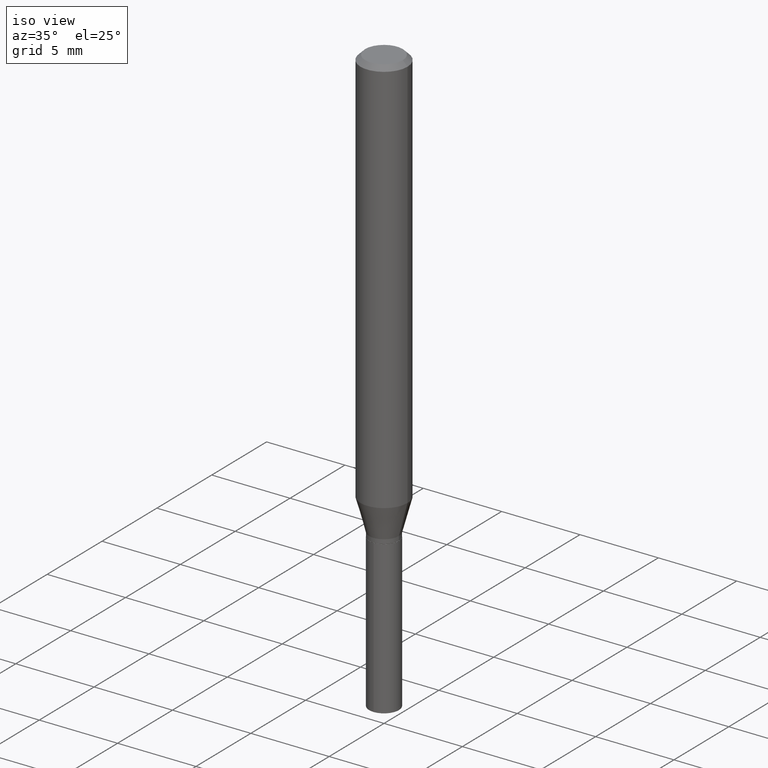
[diagram: clean part render]
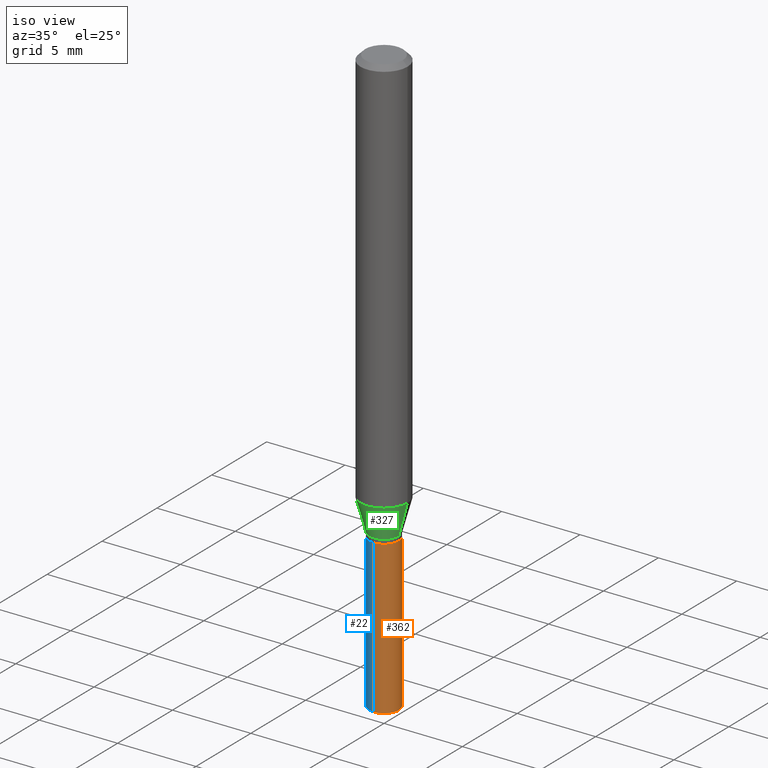
[diagram: same view with three faces highlighted in distinct colors, each labeled with its STEP entity id]
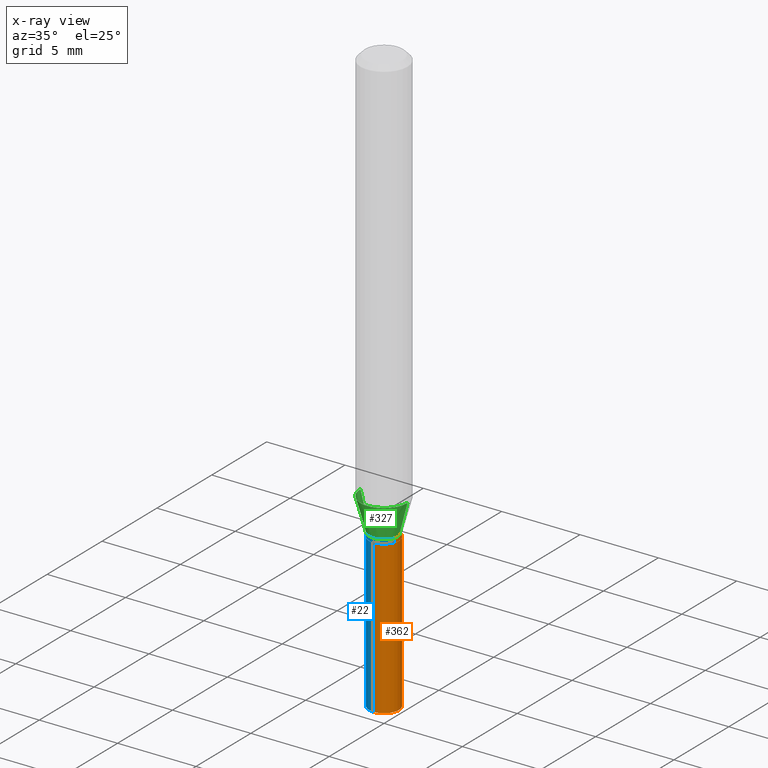
[diagram: x-ray of the same camera — body ghosted, the three highlighted faces saturated]
A machine part, iso view with three faces highlighted in distinct colors.
The next image is the same camera in x-ray (body ghosted, the three faces saturated) — at least one of them is partly hidden behind the body in this view.
Their STEP definitions:

[orange] entity #362 — the highlighted cylindrical surface (edge-blend (fillet) strip) has radius 0.95 mm, axis along (-0, 0, 1).
#4 = DIRECTION ( 'NONE',  ( -2.445358326776455510E-29, 3.491639551644474585E-15, 1.000000000000000000 ) ) ;
#11 = CARTESIAN_POINT ( 'NONE',  ( 2.676565608369631794E-29, -3.821426325363822773E-15, -1.094499999999999806 ) ) ;
#14 = CARTESIAN_POINT ( 'NONE',  ( 2.657429831743042113E-16, 0.03739999999999617936, -1.094500000000000028 ) ) ;
#28 = ORIENTED_EDGE ( 'NONE', *, *, #271, .F. ) ;
#42 = AXIS2_PLACEMENT_3D ( 'NONE', #116, #273, #412 ) ;
#52 = DIRECTION ( 'NONE',  ( -6.982962677686265922E-15, -1.000000000000000000, 3.652203200085913145E-15 ) ) ;
#64 = EDGE_CURVE ( 'NONE', #246, #375, #121, .T. ) ;
#79 = DIRECTION ( 'NONE',  ( -2.445358326776455790E-29, 3.491639551644474585E-15, 1.000000000000000000 ) ) ;
#80 = CARTESIAN_POINT ( 'NONE',  ( -2.611628041454301126E-16, -0.03740000000000516522, -1.478660093585003388 ) ) ;
#97 = ORIENTED_EDGE ( 'NONE', *, *, #64, .F. ) ;
#116 = CARTESIAN_POINT ( 'NONE',  ( 3.615974692032942336E-29, -5.162774902288663749E-15, -1.478660093585003388 ) ) ;
#121 = LINE ( 'NONE', #413, #355 ) ;
#127 = AXIS2_PLACEMENT_3D ( 'NONE', #424, #237, #205 ) ;
#133 = CIRCLE ( 'NONE', #464, 0.03740000000000000269 ) ;
#159 = CARTESIAN_POINT ( 'NONE',  ( 2.657429831743136776E-16, 0.03739999999999617936, -1.094500000000000028 ) ) ;
#179 = ORIENTED_EDGE ( 'NONE', *, *, #360, .T. ) ;
#187 = LINE ( 'NONE', #14, #317 ) ;
#205 = DIRECTION ( 'NONE',  ( -6.982962677686265922E-15, -1.000000000000000000, 3.652203200085913145E-15 ) ) ;
#216 = EDGE_CURVE ( 'NONE', #469, #285, #187, .T. ) ;
#237 = DIRECTION ( 'NONE',  ( -2.445358326776455510E-29, 3.491639551644474585E-15, 1.000000000000000000 ) ) ;
#246 = VERTEX_POINT ( 'NONE', #80 ) ;
#269 = FACE_OUTER_BOUND ( 'NONE', #358, .T. ) ;
#271 = EDGE_CURVE ( 'NONE', #375, #285, #133, .T. ) ;
#273 = DIRECTION ( 'NONE',  ( -2.445358326776455510E-29, 3.491639551644474585E-15, 1.000000000000000000 ) ) ;
#276 = CIRCLE ( 'NONE', #42, 0.03740000000000000269 ) ;
#285 = VERTEX_POINT ( 'NONE', #159 ) ;
#317 = VECTOR ( 'NONE', #378, 39.37007874015748143 ) ;
#321 = CARTESIAN_POINT ( 'NONE',  ( 2.657429831743135790E-16, 0.03739999999999483321, -1.478660093585003388 ) ) ;
#355 = VECTOR ( 'NONE', #79, 39.37007874015748143 ) ;
#358 = EDGE_LOOP ( 'NONE', ( #179, #486, #28, #97 ) ) ;
#360 = EDGE_CURVE ( 'NONE', #246, #469, #276, .T. ) ;
#362 = ADVANCED_FACE ( 'NONE', ( #269 ), #385, .T. ) ;
#375 = VERTEX_POINT ( 'NONE', #450 ) ;
#378 = DIRECTION ( 'NONE',  ( -2.445358326776455790E-29, 3.491639551644474585E-15, 1.000000000000000000 ) ) ;
#385 = CYLINDRICAL_SURFACE ( 'NONE', #127, 0.03740000000000000269 ) ;
#412 = DIRECTION ( 'NONE',  ( -6.982962677686265922E-15, -1.000000000000000000, 0.000000000000000000 ) ) ;
#413 = CARTESIAN_POINT ( 'NONE',  ( -2.611628041454395789E-16, -0.03740000000000381908, -1.094499999999999806 ) ) ;
#424 = CARTESIAN_POINT ( 'NONE',  ( 2.676565608369631794E-29, -3.821426325363822773E-15, -1.094499999999999806 ) ) ;
#450 = CARTESIAN_POINT ( 'NONE',  ( -2.611628041454395789E-16, -0.03740000000000381908, -1.094499999999999806 ) ) ;
#464 = AXIS2_PLACEMENT_3D ( 'NONE', #11, #4, #52 ) ;
#469 = VERTEX_POINT ( 'NONE', #321 ) ;
#486 = ORIENTED_EDGE ( 'NONE', *, *, #216, .T. ) ;

[blue] entity #22 — the highlighted cylindrical surface (edge-blend (fillet) strip) has radius 0.95 mm, axis along (-0, 0, 1).
#12 = FACE_OUTER_BOUND ( 'NONE', #478, .T. ) ;
#14 = CARTESIAN_POINT ( 'NONE',  ( 2.657429831743042113E-16, 0.03739999999999617936, -1.094500000000000028 ) ) ;
#22 = ADVANCED_FACE ( 'NONE', ( #12 ), #274, .T. ) ;
#45 = DIRECTION ( 'NONE',  ( -2.445358326776455510E-29, 3.491639551644474585E-15, 1.000000000000000000 ) ) ;
#50 = ORIENTED_EDGE ( 'NONE', *, *, #64, .T. ) ;
#57 = CIRCLE ( 'NONE', #158, 0.03740000000000000269 ) ;
#64 = EDGE_CURVE ( 'NONE', #246, #375, #121, .T. ) ;
#79 = DIRECTION ( 'NONE',  ( -2.445358326776455790E-29, 3.491639551644474585E-15, 1.000000000000000000 ) ) ;
#80 = CARTESIAN_POINT ( 'NONE',  ( -2.611628041454301126E-16, -0.03740000000000516522, -1.478660093585003388 ) ) ;
#95 = ORIENTED_EDGE ( 'NONE', *, *, #366, .F. ) ;
#121 = LINE ( 'NONE', #413, #355 ) ;
#129 = DIRECTION ( 'NONE',  ( -6.982962677686265922E-15, -1.000000000000000000, 0.000000000000000000 ) ) ;
#158 = AXIS2_PLACEMENT_3D ( 'NONE', #376, #201, #346 ) ;
#159 = CARTESIAN_POINT ( 'NONE',  ( 2.657429831743136776E-16, 0.03739999999999617936, -1.094500000000000028 ) ) ;
#167 = DIRECTION ( 'NONE',  ( -2.445358326776455510E-29, 3.491639551644474585E-15, 1.000000000000000000 ) ) ;
#170 = CIRCLE ( 'NONE', #267, 0.03740000000000000269 ) ;
#187 = LINE ( 'NONE', #14, #317 ) ;
#194 = CARTESIAN_POINT ( 'NONE',  ( 3.615974692032942336E-29, -5.162774902288663749E-15, -1.478660093585003388 ) ) ;
#201 = DIRECTION ( 'NONE',  ( -2.445358326776455510E-29, 3.491639551644474585E-15, 1.000000000000000000 ) ) ;
#206 = ORIENTED_EDGE ( 'NONE', *, *, #216, .F. ) ;
#216 = EDGE_CURVE ( 'NONE', #469, #285, #187, .T. ) ;
#218 = EDGE_CURVE ( 'NONE', #469, #246, #170, .T. ) ;
#246 = VERTEX_POINT ( 'NONE', #80 ) ;
#267 = AXIS2_PLACEMENT_3D ( 'NONE', #194, #45, #129 ) ;
#268 = ORIENTED_EDGE ( 'NONE', *, *, #218, .T. ) ;
#274 = CYLINDRICAL_SURFACE ( 'NONE', #395, 0.03740000000000000269 ) ;
#285 = VERTEX_POINT ( 'NONE', #159 ) ;
#312 = DIRECTION ( 'NONE',  ( -6.982962677686265922E-15, -1.000000000000000000, 3.652203200085913145E-15 ) ) ;
#317 = VECTOR ( 'NONE', #378, 39.37007874015748143 ) ;
#321 = CARTESIAN_POINT ( 'NONE',  ( 2.657429831743135790E-16, 0.03739999999999483321, -1.478660093585003388 ) ) ;
#346 = DIRECTION ( 'NONE',  ( -6.982962677686265922E-15, -1.000000000000000000, 3.652203200085913145E-15 ) ) ;
#355 = VECTOR ( 'NONE', #79, 39.37007874015748143 ) ;
#366 = EDGE_CURVE ( 'NONE', #285, #375, #57, .T. ) ;
#375 = VERTEX_POINT ( 'NONE', #450 ) ;
#376 = CARTESIAN_POINT ( 'NONE',  ( 2.676565608369631794E-29, -3.821426325363822773E-15, -1.094499999999999806 ) ) ;
#378 = DIRECTION ( 'NONE',  ( -2.445358326776455790E-29, 3.491639551644474585E-15, 1.000000000000000000 ) ) ;
#395 = AXIS2_PLACEMENT_3D ( 'NONE', #453, #167, #312 ) ;
#413 = CARTESIAN_POINT ( 'NONE',  ( -2.611628041454395789E-16, -0.03740000000000381908, -1.094499999999999806 ) ) ;
#450 = CARTESIAN_POINT ( 'NONE',  ( -2.611628041454395789E-16, -0.03740000000000381908, -1.094499999999999806 ) ) ;
#453 = CARTESIAN_POINT ( 'NONE',  ( 2.676565608369631794E-29, -3.821426325363822773E-15, -1.094499999999999806 ) ) ;
#469 = VERTEX_POINT ( 'NONE', #321 ) ;
#478 = EDGE_LOOP ( 'NONE', ( #206, #268, #50, #95 ) ) ;

[green] entity #327 — the highlighted conical surface has half-angle 15 deg.
#9 = CARTESIAN_POINT ( 'NONE',  ( 0.03739999999999995411, -4.043484538514245916E-15, -1.083299999999999930 ) ) ;
#10 = LINE ( 'NONE', #165, #34 ) ;
#16 = AXIS2_PLACEMENT_3D ( 'NONE', #272, #163, #383 ) ;
#18 = EDGE_CURVE ( 'NONE', #371, #471, #290, .T. ) ;
#29 = AXIS2_PLACEMENT_3D ( 'NONE', #457, #460, #100 ) ;
#34 = VECTOR ( 'NONE', #125, 39.37007874015747433 ) ;
#38 = CARTESIAN_POINT ( 'NONE',  ( -0.05905000000000013016, -3.080638397409715061E-15, -1.002501100016133240 ) ) ;
#81 = CARTESIAN_POINT ( 'NONE',  ( 0.03739999999999995411, -4.043484538514245916E-15, -1.083299999999999930 ) ) ;
#91 = VERTEX_POINT ( 'NONE', #81 ) ;
#96 = CARTESIAN_POINT ( 'NONE',  ( 0.05905000000000013016, -3.912557828993430263E-15, -1.002501100016133240 ) ) ;
#100 = DIRECTION ( 'NONE',  ( 1.000000000000000000, -6.982962677686270655E-15, 0.000000000000000000 ) ) ;
#120 = FACE_OUTER_BOUND ( 'NONE', #474, .T. ) ;
#122 = EDGE_CURVE ( 'NONE', #139, #371, #10, .T. ) ;
#125 = DIRECTION ( 'NONE',  ( -0.2588190451025214611, 5.211531920934551042E-15, 0.9659258262890682012 ) ) ;
#139 = VERTEX_POINT ( 'NONE', #174 ) ;
#161 = LINE ( 'NONE', #9, #300 ) ;
#163 = DIRECTION ( 'NONE',  ( -2.445468806185136597E-29, 3.491481338843145583E-15, 1.000000000000000000 ) ) ;
#164 = DIRECTION ( 'NONE',  ( 0.2588190451025214611, 1.565188264969621573E-15, 0.9659258262890682012 ) ) ;
#165 = CARTESIAN_POINT ( 'NONE',  ( -0.03739999999999995411, -3.516578751194502126E-15, -1.083299999999999930 ) ) ;
#174 = CARTESIAN_POINT ( 'NONE',  ( -0.03739999999999995411, -3.535258176357312608E-15, -1.083299999999999930 ) ) ;
#192 = EDGE_CURVE ( 'NONE', #91, #471, #161, .T. ) ;
#231 = ORIENTED_EDGE ( 'NONE', *, *, #192, .T. ) ;
#249 = ORIENTED_EDGE ( 'NONE', *, *, #262, .T. ) ;
#255 = AXIS2_PLACEMENT_3D ( 'NONE', #347, #305, #374 ) ;
#262 = EDGE_CURVE ( 'NONE', #139, #91, #445, .T. ) ;
#272 = CARTESIAN_POINT ( 'NONE',  ( 2.451585168255739892E-29, -3.500213882876055342E-15, -1.002501100016133240 ) ) ;
#289 = ORIENTED_EDGE ( 'NONE', *, *, #18, .F. ) ;
#290 = CIRCLE ( 'NONE', #16, 0.05905000000000013016 ) ;
#300 = VECTOR ( 'NONE', #164, 39.37007874015747433 ) ;
#305 = DIRECTION ( 'NONE',  ( -2.445468806185136597E-29, 3.491481338843145583E-15, 1.000000000000000000 ) ) ;
#327 = ADVANCED_FACE ( 'NONE', ( #120 ), #483, .T. ) ;
#347 = CARTESIAN_POINT ( 'NONE',  ( 2.649176357740358198E-29, -3.782321734368779516E-15, -1.083299999999999930 ) ) ;
#371 = VERTEX_POINT ( 'NONE', #38 ) ;
#374 = DIRECTION ( 'NONE',  ( 1.000000000000000000, -6.982962677686270655E-15, 0.000000000000000000 ) ) ;
#383 = DIRECTION ( 'NONE',  ( 1.000000000000000000, -6.982962677686265133E-15, 0.000000000000000000 ) ) ;
#414 = ORIENTED_EDGE ( 'NONE', *, *, #122, .F. ) ;
#445 = CIRCLE ( 'NONE', #29, 0.03739999999999995411 ) ;
#457 = CARTESIAN_POINT ( 'NONE',  ( 2.649176357740358198E-29, -3.782321734368779516E-15, -1.083299999999999930 ) ) ;
#460 = DIRECTION ( 'NONE',  ( -2.445468806185136597E-29, 3.491481338843145583E-15, 1.000000000000000000 ) ) ;
#471 = VERTEX_POINT ( 'NONE', #96 ) ;
#474 = EDGE_LOOP ( 'NONE', ( #414, #249, #231, #289 ) ) ;
#483 = CONICAL_SURFACE ( 'NONE', #255, 0.03739999999999995411, 0.2617993877991501295 ) ;